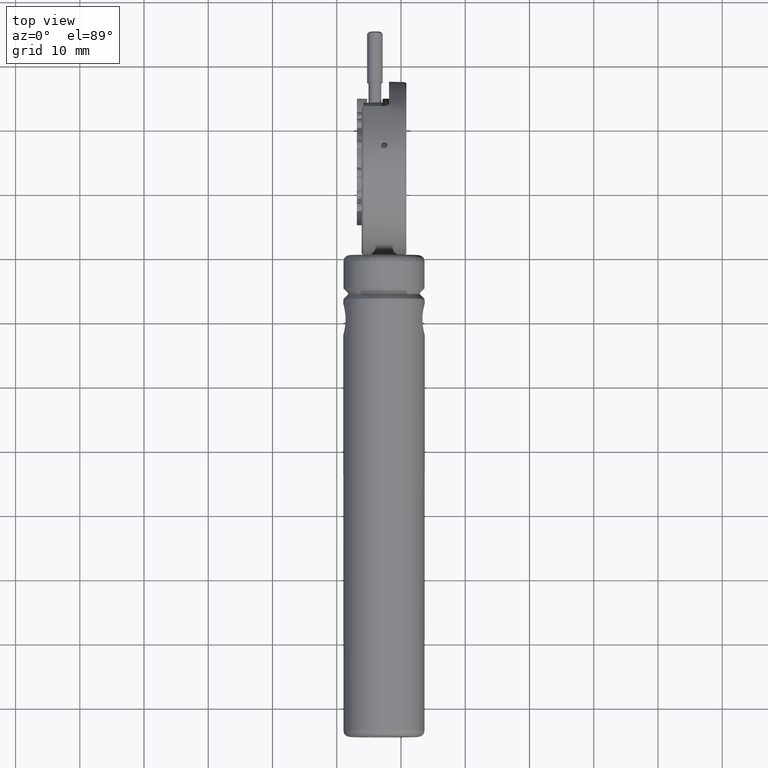
[diagram: clean part render]
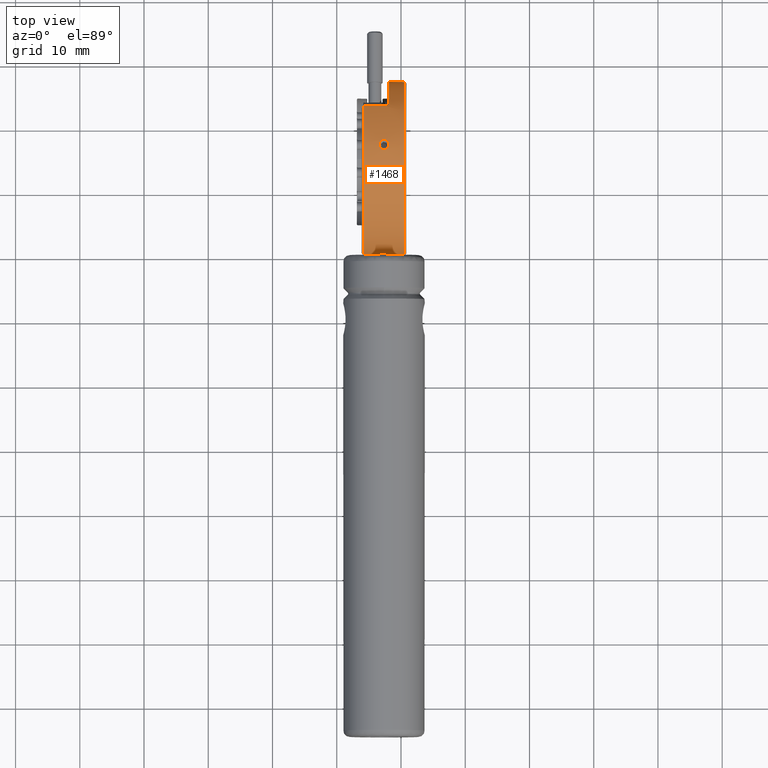
[diagram: same view with one face highlighted and labeled with its STEP entity id]
A machine part, top view. The second image highlights one B-rep face of the part: STEP entity #1468.
In plain terms, the highlighted cylindrical surface (bore or boss wall) has radius 13.5 mm, axis along (1, 0, 0).
Its self-contained STEP definition (entity closure, byte-faithful):
#177 = CIRCLE ( 'NONE', #10053, 13.49999999999999822 ) ;
#341 = CARTESIAN_POINT ( 'NONE',  ( 6.862472765938855801, 8.043231515056518788, -43.01089921876356215 ) ) ;
#346 = CARTESIAN_POINT ( 'NONE',  ( 5.788833483634074462, -9.554500805941120944, -29.61865608093620850 ) ) ;
#362 = CARTESIAN_POINT ( 'NONE',  ( 8.134389209459746084, 13.86479729069080413, -39.29938932386716033 ) ) ;
#402 = CARTESIAN_POINT ( 'NONE',  ( 6.951197932406166125, 8.099828938983165472, -42.99253362283844382 ) ) ;
#423 = CARTESIAN_POINT ( 'NONE',  ( 8.134389209459747860, 13.99690466723522597, -39.15171444627244313 ) ) ;
#453 = CARTESIAN_POINT ( 'NONE',  ( 6.655066416664647377, 7.039272983399781580, -43.28953710316449133 ) ) ;
#515 = CARTESIAN_POINT ( 'NONE',  ( 5.704389209459755250, -9.564624189008771538, -30.36905418360534981 ) ) ;
#547 = EDGE_CURVE ( 'NONE', #9798, #11067, #3924, .T. ) ;
#580 = CARTESIAN_POINT ( 'NONE',  ( 5.704389209459754362, -9.564624189008769761, -30.15084576180818488 ) ) ;
#691 = CARTESIAN_POINT ( 'NONE',  ( 8.786429568592232897, -9.539589650735070592, -30.97751210931916077 ) ) ;
#732 = CARTESIAN_POINT ( 'NONE',  ( 7.144935347753054167, 8.176255880045928848, -42.96749716594912627 ) ) ;
#755 = CARTESIAN_POINT ( 'NONE',  ( 7.570314119665177088, -9.464733438938118582, -28.51147960778699542 ) ) ;
#790 = VERTEX_POINT ( 'NONE', #8972 ) ;
#1038 = CARTESIAN_POINT ( 'NONE',  ( 7.354389209460113541, 6.650551893426499106, -16.92670802653896800 ) ) ;
#1065 = CARTESIAN_POINT ( 'NONE',  ( 8.134389209459747860, 13.99690466723522597, -39.15171444627244313 ) ) ;
#1091 = EDGE_LOOP ( 'NONE', ( #10116, #10543, #9153, #4359, #3761, #10577 ) ) ;
#1175 = CARTESIAN_POINT ( 'NONE',  ( 6.339738600207126318, -9.500920979261239907, -28.83205135825627252 ) ) ;
#1303 = CARTESIAN_POINT ( 'NONE',  ( 7.384389209459747860, 13.48131735700957812, -39.69678730782662512 ) ) ;
#1326 = CARTESIAN_POINT ( 'NONE',  ( 7.563843992874067723, 8.176255630840147504, -17.33419427501473109 ) ) ;
#1397 = CARTESIAN_POINT ( 'NONE',  ( 6.348827804548049514, -9.500795822877472929, -31.46343389921066347 ) ) ;
#1415 = EDGE_LOOP ( 'NONE', ( #7370 ) ) ;
#1451 = CARTESIAN_POINT ( 'NONE',  ( 8.597109243118294941, -9.520705229979482098, -31.24158198657451280 ) ) ;
#1468 = ADVANCED_FACE ( 'NONE', ( #11145, #4661, #8372, #8248, #3885 ), #9370, .T. ) ;
#1527 = ORIENTED_EDGE ( 'NONE', *, *, #3706, .T. ) ;
#1587 = EDGE_LOOP ( 'NONE', ( #1527 ) ) ;
#1606 = CARTESIAN_POINT ( 'NONE',  ( 7.582531633801018245, 13.48131735700960476, -20.60490421578978726 ) ) ;
#1607 = CARTESIAN_POINT ( 'NONE',  ( 8.067644417237932686, 7.024102770417527175, -43.29358441722168749 ) ) ;
#1620 = DIRECTION ( 'NONE',  ( -1.000000000000000000, -1.399727883735551326E-17, -1.375382564234869062E-17 ) ) ;
#1629 = CARTESIAN_POINT ( 'NONE',  ( 8.369038357474796186, -9.500920869643209699, -31.46964122840930500 ) ) ;
#1855 = DIRECTION ( 'NONE',  ( 0.000000000000000000, 6.424901762877064728E-17, -1.000000000000000000 ) ) ;
#2039 = CARTESIAN_POINT ( 'NONE',  ( 8.133773154319454690, 7.227538933832732937, -17.05805958857096272 ) ) ;
#2056 = VECTOR ( 'NONE', #1620, 1000.000000000000000 ) ;
#2061 = CARTESIAN_POINT ( 'NONE',  ( 5.757067925882394022, -9.558270892968069532, -29.72348830418765786 ) ) ;
#2103 = CARTESIAN_POINT ( 'NONE',  ( 8.053712181292851824, 7.039273311014246914, -17.01215449841135552 ) ) ;
#2160 = CARTESIAN_POINT ( 'NONE',  ( 6.575005300685445420, 7.630672176892888459, -17.16607881786689305 ) ) ;
#2172 = CARTESIAN_POINT ( 'NONE',  ( 7.460108622098074349, 6.650552040771541940, -43.37498346682458106 ) ) ;
#2177 = CARTESIAN_POINT ( 'NONE',  ( 6.920544865196354145, -9.468967587344295112, -28.54446932696870931 ) ) ;
#2228 = CARTESIAN_POINT ( 'NONE',  ( 7.846306170221623688, 6.807895549451655981, -43.34190651334564848 ) ) ;
#2236 = B_SPLINE_CURVE_WITH_KNOTS ( 'NONE', 3,
 ( #1303, #8525, #6847, #4042, #2968, #4942, #362, #423 ),
 .UNSPECIFIED., .F., .F.,
 ( 4, 2, 2, 4 ),
 ( 0.000000000000000000, 0.0002929961417332007626, 0.0005859922834664015251, 0.001171984566932804134 ),
 .UNSPECIFIED. ) ;
#2277 = CARTESIAN_POINT ( 'NONE',  ( 7.995092130957172749, 6.953333462210887994, -16.99229247769826401 ) ) ;
#2347 = CARTESIAN_POINT ( 'NONE',  ( 8.961216522838045151, -9.559164214872033938, -29.71799596745508865 ) ) ;
#2394 = EDGE_LOOP ( 'NONE', ( #10131 ) ) ;
#2404 = CARTESIAN_POINT ( 'NONE',  ( 5.871902851419068092, -9.545112678459087618, -30.88325439365420877 ) ) ;
#2474 = EDGE_LOOP ( 'NONE', ( #6123 ) ) ;
#2563 = CARTESIAN_POINT ( 'NONE',  ( 7.354389209460117982, 8.196033215488997214, -42.96087302491338988 ) ) ;
#2583 = CARTESIAN_POINT ( 'NONE',  ( 8.443335022016121627, -9.507370031931214882, -28.90644025326949773 ) ) ;
#2968 = CARTESIAN_POINT ( 'NONE',  ( 7.845474213297227273, 13.58722835534953965, -39.58994144139157356 ) ) ;
#2995 = CARTESIAN_POINT ( 'NONE',  ( 7.771251559114896068, 6.734379471697929276, -16.94334977776139795 ) ) ;
#3007 = DIRECTION ( 'NONE',  ( 0.000000000000000000, -6.424901762877064728E-17, 1.000000000000000000 ) ) ;
#3050 = B_SPLINE_CURVE_WITH_KNOTS ( 'NONE', 3,
 ( #2563, #7045, #732, #402, #341, #5257, #8616, #10391, #6711, #453, #4073, #11233, #3121, #2172, #5873, #5197, #2228, #1607, #3460, #4364, #3338, #7610, #9775, #3069, #7102, #6978 ),
 .UNSPECIFIED., .T., .F.,
 ( 4, 2, 2, 2, 2, 2, 2, 2, 2, 2, 2, 2, 4 ),
 ( 0.000000000000000000, 0.0003126482922094571035, 0.0006252965844189142071, 0.001250593168837834486, 0.001563241461047295980, 0.001875889753256757475, 0.002501186337675675476, 0.002813834629885134803, 0.003126482922094594129, 0.003751779506513505408, 0.004064427798722960831, 0.004377076090932419290, 0.005002372675351331004 ),
 .UNSPECIFIED. ) ;
#3069 = CARTESIAN_POINT ( 'NONE',  ( 7.771251559114893404, 8.115115527556985953, -42.98837463472700193 ) ) ;
#3121 = CARTESIAN_POINT ( 'NONE',  ( 7.142953792946594049, 6.650551598738796422, -43.37498355758262392 ) ) ;
#3226 = CARTESIAN_POINT ( 'NONE',  ( 8.154245683008815249, 7.631567999934081747, -17.16501784367211769 ) ) ;
#3300 = CARTESIAN_POINT ( 'NONE',  ( 8.919943805406209236, -9.554500674453578313, -30.68303872468437277 ) ) ;
#3338 = CARTESIAN_POINT ( 'NONE',  ( 8.133773154319458243, 7.630671999826797780, -43.13561275557002972 ) ) ;
#3422 = CARTESIAN_POINT ( 'NONE',  ( 6.823888837546153496, -9.473537819474650234, -31.71697624980063779 ) ) ;
#3460 = CARTESIAN_POINT ( 'NONE',  ( 8.154245683008804590, 7.227293437165154266, -43.24499872255866961 ) ) ;
#3478 = CARTESIAN_POINT ( 'NONE',  ( 6.926784925553987726, -9.469815340282053739, -31.74812453893319386 ) ) ;
#3655 = CARTESIAN_POINT ( 'NONE',  ( 6.862472765938855801, 6.807895144667571508, -16.95978492202630505 ) ) ;
#3706 = EDGE_CURVE ( 'NONE', #11100, #11100, #3050, .T. ) ;
#3712 = CARTESIAN_POINT ( 'NONE',  ( 6.951197932406161684, 6.749697539795772805, -16.94739128268977524 ) ) ;
#3761 = ORIENTED_EDGE ( 'NONE', *, *, #8813, .T. ) ;
#3836 = VERTEX_POINT ( 'NONE', #11337 ) ;
#3838 = VERTEX_POINT ( 'NONE', #9537 ) ;
#3885 = FACE_BOUND ( 'NONE', #1587, .T. ) ;
#3924 = LINE ( 'NONE', #7565, #11536 ) ;
#4042 = CARTESIAN_POINT ( 'NONE',  ( 7.762290687107354259, 13.54811783327844310, -39.62959075135725584 ) ) ;
#4073 = CARTESIAN_POINT ( 'NONE',  ( 6.713686560338775422, 6.953333092816747829, -43.30939913076996817 ) ) ;
#4099 = AXIS2_PLACEMENT_3D ( 'NONE', #7585, #10017, #1855 ) ;
#4184 = CARTESIAN_POINT ( 'NONE',  ( 7.384389209459747860, 13.48131735700960121, -20.60490421578978371 ) ) ;
#4202 = CARTESIAN_POINT ( 'NONE',  ( 8.597370939519496602, -9.520723787183086984, -29.06027505291162427 ) ) ;
#4260 = CARTESIAN_POINT ( 'NONE',  ( 7.884890438090080167, -9.473537852275965676, -28.58471555097074202 ) ) ;
#4296 = CARTESIAN_POINT ( 'NONE',  ( 8.134389209459747860, 13.93085178113010869, -21.07614053524083531 ) ) ;
#4324 = CARTESIAN_POINT ( 'NONE',  ( 8.181259770130891340, -9.488605317727429878, -28.71894965126415400 ) ) ;
#4359 = ORIENTED_EDGE ( 'NONE', *, *, #8775, .T. ) ;
#4364 = CARTESIAN_POINT ( 'NONE',  ( 8.154460689708539434, 7.529706635593208297, -43.16398054085267688 ) ) ;
#4379 = CARTESIAN_POINT ( 'NONE',  ( 3.874389209459748074, 13.48131735700960121, -20.60490421578978371 ) ) ;
#4385 = CARTESIAN_POINT ( 'NONE',  ( 7.138464663658658615, -9.464733434385854238, -31.79021195213575623 ) ) ;
#4477 = CARTESIAN_POINT ( 'NONE',  ( 4.124389209459759620, 3.935375810991228018, -30.15084576180818843 ) ) ;
#4544 = DIRECTION ( 'NONE',  ( 0.000000000000000000, 6.424901762877064728E-17, -1.000000000000000000 ) ) ;
#4614 = CARTESIAN_POINT ( 'NONE',  ( 7.248670812756217607, 6.650551893426452033, -16.92670802653895379 ) ) ;
#4653 = CARTESIAN_POINT ( 'NONE',  ( 7.384389209459747860, 13.48131735700960121, -20.60490421578978371 ) ) ;
#4661 = FACE_BOUND ( 'NONE', #2474, .T. ) ;
#4764 = EDGE_CURVE ( 'NONE', #3838, #3838, #177, .T. ) ;
#4814 = CARTESIAN_POINT ( 'NONE',  ( 6.111667615060498271, -9.520705373938112004, -29.06011129676277349 ) ) ;
#4942 = CARTESIAN_POINT ( 'NONE',  ( 8.053014151375645469, 13.73155826644864064, -39.44083760490748602 ) ) ;
#4961 = CARTESIAN_POINT ( 'NONE',  ( 7.757581126513665382, 8.099828572114152081, -17.30915778161249818 ) ) ;
#5015 = CARTESIAN_POINT ( 'NONE',  ( 7.460108622098078790, 8.196033072758025284, -17.34081845123019860 ) ) ;
#5094 = CARTESIAN_POINT ( 'NONE',  ( 7.788232834734084342, -9.468967568169272653, -31.75722234278040190 ) ) ;
#5197 = CARTESIAN_POINT ( 'NONE',  ( 7.757581126513660941, 6.749697917096385780, -43.35430016069239656 ) ) ;
#5257 = CARTESIAN_POINT ( 'NONE',  ( 6.641134156665703614, 7.831829473198062885, -43.07715468829457706 ) ) ;
#5280 = CARTESIAN_POINT ( 'NONE',  ( 6.624009286431121524, -9.482932164929449570, -31.63433506681064600 ) ) ;
#5320 = CARTESIAN_POINT ( 'NONE',  ( 4.124389209459757843, 13.48131735700957812, -39.69678730782662512 ) ) ;
#5432 = VERTEX_POINT ( 'NONE', #4653 ) ;
#5706 = DIRECTION ( 'NONE',  ( 1.000000000000000000, 1.399727883735551326E-17, 1.375382564234869062E-17 ) ) ;
#5714 = CARTESIAN_POINT ( 'NONE',  ( 5.922347401930329269, -9.539589804906857040, -29.32418190174698225 ) ) ;
#5749 = CARTESIAN_POINT ( 'NONE',  ( 7.565826002867905409, 6.650551893426591477, -16.92670802653899642 ) ) ;
#5817 = CARTESIAN_POINT ( 'NONE',  ( 7.137784490026099604, -9.463430735736638511, -28.50100239102129507 ) ) ;
#5873 = CARTESIAN_POINT ( 'NONE',  ( 7.563843992874066835, 6.670991896002037791, -43.37083145074738155 ) ) ;
#5897 = VERTEX_POINT ( 'NONE', #1065 ) ;
#5947 = DIRECTION ( 'NONE',  ( 0.000000000000000000, 6.424901762877064728E-17, -1.000000000000000000 ) ) ;
#5985 = CARTESIAN_POINT ( 'NONE',  ( 8.951709547286032631, -9.558270780695144353, -30.57820671060894568 ) ) ;
#6024 = CARTESIAN_POINT ( 'NONE',  ( 7.984166314906762985, 13.68374725045446816, -20.81146430193891561 ) ) ;
#6035 = LINE ( 'NONE', #4379, #2056 ) ;
#6045 = CARTESIAN_POINT ( 'NONE',  ( 5.747562871797084583, -9.559164097027474938, -30.58369902067402535 ) ) ;
#6123 = ORIENTED_EDGE ( 'NONE', *, *, #6417, .T. ) ;
#6164 = CARTESIAN_POINT ( 'NONE',  ( 7.460896913928785956, -9.463401883602802656, -28.50076809786587262 ) ) ;
#6383 = DIRECTION ( 'NONE',  ( 1.000000000000000000, 1.399727883735551326E-17, 1.375382564234869062E-17 ) ) ;
#6417 = EDGE_CURVE ( 'NONE', #10836, #10836, #11662, .T. ) ;
#6457 = CIRCLE ( 'NONE', #8740, 13.49999999999999822 ) ;
#6462 = CARTESIAN_POINT ( 'NONE',  ( 6.554317729146832860, 7.529706725880452645, -17.13771100695216276 ) ) ;
#6547 = CARTESIAN_POINT ( 'NONE',  ( 7.354389209460115318, 6.650551893426499106, -16.92670802653896445 ) ) ;
#6641 = EDGE_CURVE ( 'NONE', #3836, #5432, #10104, .T. ) ;
#6711 = CARTESIAN_POINT ( 'NONE',  ( 6.575005300685447196, 7.227538755578735596, -43.24363198043262457 ) ) ;
#6716 = CARTESIAN_POINT ( 'NONE',  ( 5.715104060465554525, -9.563302712776028613, -29.93448060786656484 ) ) ;
#6787 = DIRECTION ( 'NONE',  ( 1.000000000000000000, 1.399727883735551326E-17, 1.375382564234869062E-17 ) ) ;
#6847 = CARTESIAN_POINT ( 'NONE',  ( 7.580674885609854030, 13.49513136847293460, -39.68302753961466323 ) ) ;
#6941 = CARTESIAN_POINT ( 'NONE',  ( 6.043191495294832016, -9.527283797320281522, -31.15821840237010321 ) ) ;
#6978 = CARTESIAN_POINT ( 'NONE',  ( 7.354389209460117982, 8.196033215488997214, -42.96087302491338988 ) ) ;
#7001 = CARTESIAN_POINT ( 'NONE',  ( 8.837106262788262612, -9.545138135438959281, -30.88278884866181073 ) ) ;
#7045 = CARTESIAN_POINT ( 'NONE',  ( 7.248670812756223825, 8.196033215489039847, -42.96087302491337567 ) ) ;
#7063 = CARTESIAN_POINT ( 'NONE',  ( 8.084770283912408928, -9.482932226510891738, -28.66735700992718705 ) ) ;
#7102 = CARTESIAN_POINT ( 'NONE',  ( 7.565826002867904521, 8.196033215488908397, -42.96087302491341120 ) ) ;
#7354 = CARTESIAN_POINT ( 'NONE',  ( 6.554532736038940044, 7.227293256592107973, -17.05669275268120799 ) ) ;
#7370 = ORIENTED_EDGE ( 'NONE', *, *, #4764, .F. ) ;
#7444 = VERTEX_POINT ( 'NONE', #6547 ) ;
#7565 = CARTESIAN_POINT ( 'NONE',  ( 3.874389209459748518, 13.48131735700957812, -39.69678730782662512 ) ) ;
#7585 = CARTESIAN_POINT ( 'NONE',  ( 3.874389209459748518, 3.935375810991228018, -30.15084576180818843 ) ) ;
#7590 = CARTESIAN_POINT ( 'NONE',  ( 7.354389209460115318, 8.196033215488993662, -42.96087302491338988 ) ) ;
#7610 = CARTESIAN_POINT ( 'NONE',  ( 8.053712181292848271, 7.816667356926704890, -43.08123491840201780 ) ) ;
#7616 = CARTESIAN_POINT ( 'NONE',  ( 5.704389209459754362, -9.564624189008769761, -30.15084576180818488 ) ) ;
#7783 = CARTESIAN_POINT ( 'NONE',  ( 7.247881685339643276, -9.463401883618876909, -31.80092342561996333 ) ) ;
#7844 = CARTESIAN_POINT ( 'NONE',  ( 8.785133076204095559, -9.539452288134736335, -29.32198442828852691 ) ) ;
#7901 = CARTESIAN_POINT ( 'NONE',  ( 8.993673828602860354, -9.563302648111907445, -30.36721484378203684 ) ) ;
#7965 = CARTESIAN_POINT ( 'NONE',  ( 8.359952049371578653, -9.500795929690770691, -28.83825870927254442 ) ) ;
#8023 = CARTESIAN_POINT ( 'NONE',  ( 9.004389789298137714, -9.564624259877914980, -29.93264218967414436 ) ) ;
#8199 = CARTESIAN_POINT ( 'NONE',  ( 7.144935347753054167, 6.670991638857233674, -16.93086001984528366 ) ) ;
#8248 = FACE_BOUND ( 'NONE', #2394, .T. ) ;
#8372 = FACE_OUTER_BOUND ( 'NONE', #1415, .T. ) ;
#8456 = CARTESIAN_POINT ( 'NONE',  ( 6.523624250071842212, -9.487677919185021125, -28.70914685159491597 ) ) ;
#8492 = CARTESIAN_POINT ( 'NONE',  ( 8.067644417237930909, 7.831829126480949199, -17.22453673120720197 ) ) ;
#8525 = CARTESIAN_POINT ( 'NONE',  ( 7.483460689329414883, 13.48131735700958522, -39.69678730782662512 ) ) ;
#8551 = CARTESIAN_POINT ( 'NONE',  ( 6.937527517967446045, 8.115115953416944805, -17.31331702701070085 ) ) ;
#8603 = CARTESIAN_POINT ( 'NONE',  ( 6.655066416664644713, 7.816667679628892529, -17.22045670150671270 ) ) ;
#8616 = CARTESIAN_POINT ( 'NONE',  ( 6.554532736038938268, 7.631568180503193410, -43.13667363155304457 ) ) ;
#8656 = CARTESIAN_POINT ( 'NONE',  ( 6.713686560338773646, 7.901024821874999660, -17.24622562632121969 ) ) ;
#8737 = CARTESIAN_POINT ( 'NONE',  ( 6.527519906698329599, -9.488605240827164167, -31.58274258548247815 ) ) ;
#8740 = AXIS2_PLACEMENT_3D ( 'NONE', #4477, #6383, #4544 ) ;
#8775 = EDGE_CURVE ( 'NONE', #11067, #5897, #2236, .T. ) ;
#8776 = CARTESIAN_POINT ( 'NONE',  ( 8.134389209459747860, 13.99690466723524729, -21.14997707734395505 ) ) ;
#8794 = CARTESIAN_POINT ( 'NONE',  ( 8.666720258063561388, -9.527393866369440190, -31.15678018271336569 ) ) ;
#8813 = EDGE_CURVE ( 'NONE', #5897, #3836, #11751, .T. ) ;
#8832 = CARTESIAN_POINT ( 'NONE',  ( 7.776773348659285823, 13.53931619389006791, -20.66224753970528027 ) ) ;
#8888 = CARTESIAN_POINT ( 'NONE',  ( 8.114948068621568922, 13.86519548537401114, -21.00442945782663529 ) ) ;
#8912 = CARTESIAN_POINT ( 'NONE',  ( 7.781994192311969094, -9.469815361258230979, -28.55356715979867843 ) ) ;
#8972 = CARTESIAN_POINT ( 'NONE',  ( 4.124389209459758732, 13.48131735700960121, -20.60490421578978371 ) ) ;
#9153 = ORIENTED_EDGE ( 'NONE', *, *, #547, .T. ) ;
#9342 = CARTESIAN_POINT ( 'NONE',  ( 6.042056602545443411, -9.527394018516144314, -29.14491335609052669 ) ) ;
#9370 = CYLINDRICAL_SURFACE ( 'NONE', #4099, 13.49999999999999822 ) ;
#9466 = EDGE_CURVE ( 'NONE', #5432, #790, #6035, .T. ) ;
#9487 = CARTESIAN_POINT ( 'NONE',  ( 7.142953792946595826, 8.196033500948630035, -17.34081859364780343 ) ) ;
#9537 = CARTESIAN_POINT ( 'NONE',  ( 10.58438920945974715, 3.935375810991227130, -16.65084576180819198 ) ) ;
#9550 = CARTESIAN_POINT ( 'NONE',  ( 10.58438920945974715, 3.935375810991228018, -30.15084576180818843 ) ) ;
#9611 = CARTESIAN_POINT ( 'NONE',  ( 8.185152893970954580, -9.487677844371821934, -31.59254535311857026 ) ) ;
#9645 = EDGE_CURVE ( 'NONE', #7444, #7444, #11208, .T. ) ;
#9737 = CARTESIAN_POINT ( 'NONE',  ( 7.570993568206412228, -9.463430735704490004, -31.80068913285617072 ) ) ;
#9775 = CARTESIAN_POINT ( 'NONE',  ( 7.995092130957169196, 7.901024459544355061, -43.05546600850836114 ) ) ;
#9793 = CARTESIAN_POINT ( 'NONE',  ( 6.265444934567349300, -9.507369907422868138, -31.39525260208654700 ) ) ;
#9798 = VERTEX_POINT ( 'NONE', #5320 ) ;
#9851 = AXIS2_PLACEMENT_3D ( 'NONE', #11253, #6787, #5947 ) ;
#10017 = DIRECTION ( 'NONE',  ( 1.000000000000000000, 1.399727883735551326E-17, 1.375382564234869062E-17 ) ) ;
#10027 = CARTESIAN_POINT ( 'NONE',  ( 6.641134156665703614, 7.024102418094400946, -17.00810702320201884 ) ) ;
#10053 = AXIS2_PLACEMENT_3D ( 'NONE', #9550, #5706, #3007 ) ;
#10104 = B_SPLINE_CURVE_WITH_KNOTS ( 'NONE', 3,
 ( #8776, #4296, #8888, #11567, #6024, #8832, #1606, #4184 ),
 .UNSPECIFIED., .F., .F.,
 ( 4, 2, 2, 4 ),
 ( 0.000000000000000000, 0.0002929972604935865811, 0.0005859945209871731623, 0.001171989041974351529 ),
 .UNSPECIFIED. ) ;
#10116 = ORIENTED_EDGE ( 'NONE', *, *, #9466, .T. ) ;
#10131 = ORIENTED_EDGE ( 'NONE', *, *, #9645, .T. ) ;
#10229 = CARTESIAN_POINT ( 'NONE',  ( 5.704389209459753474, -9.564624189008769761, -30.04174155090959530 ) ) ;
#10343 = CARTESIAN_POINT ( 'NONE',  ( 5.871670789281648872, -9.545138286139049910, -29.41890541344861987 ) ) ;
#10377 = CARTESIAN_POINT ( 'NONE',  ( 7.354389209460113541, 6.650551893426499106, -16.92670802653896800 ) ) ;
#10391 = CARTESIAN_POINT ( 'NONE',  ( 6.554317729146833749, 7.329161306517420371, -43.21771649982830610 ) ) ;
#10543 = ORIENTED_EDGE ( 'NONE', *, *, #10800, .T. ) ;
#10568 = CARTESIAN_POINT ( 'NONE',  ( 6.111409036850449006, -9.520723643368469880, -31.24141823003425955 ) ) ;
#10577 = ORIENTED_EDGE ( 'NONE', *, *, #6641, .T. ) ;
#10690 = CARTESIAN_POINT ( 'NONE',  ( 8.665588467660660044, -9.527283947892779992, -29.14347511119148493 ) ) ;
#10800 = EDGE_CURVE ( 'NONE', #790, #9798, #6457, .T. ) ;
#10836 = VERTEX_POINT ( 'NONE', #11610 ) ;
#11067 = VERTEX_POINT ( 'NONE', #11068 ) ;
#11068 = CARTESIAN_POINT ( 'NONE',  ( 7.384389209459747860, 13.48131735700957812, -39.69678730782662512 ) ) ;
#11100 = VERTEX_POINT ( 'NONE', #7590 ) ;
#11145 = FACE_OUTER_BOUND ( 'NONE', #1091, .T. ) ;
#11160 = CARTESIAN_POINT ( 'NONE',  ( 7.846306170221619247, 8.043231120381010513, -17.29079217888268616 ) ) ;
#11190 = DIRECTION ( 'NONE',  ( 1.000000000000000000, 1.399727883735551326E-17, 1.375382564234869062E-17 ) ) ;
#11208 = B_SPLINE_CURVE_WITH_KNOTS ( 'NONE', 3,
 ( #1038, #4614, #8199, #3712, #3655, #10027, #7354, #6462, #2160, #8603, #8656, #8551, #9487, #5015, #1326, #4961, #11160, #8492, #3226, #11326, #2039, #2103, #2277, #2995, #5749, #10377 ),
 .UNSPECIFIED., .T., .F.,
 ( 4, 2, 2, 2, 2, 2, 2, 2, 2, 2, 2, 2, 4 ),
 ( 0.000000000000000000, 0.0003126482922094572662, 0.0006252965844189145323, 0.001250593168837832317, 0.001563241461047292511, 0.001875889753256752921, 0.002501186337675669405, 0.002813834629885128731, 0.003126482922094588057, 0.003751779506513505408, 0.004064427798722962566, 0.004377076090932420158, 0.005002372675351336208 ),
 .UNSPECIFIED. ) ;
#11233 = CARTESIAN_POINT ( 'NONE',  ( 6.937527517967441604, 6.734379033831729977, -43.35834183916835372 ) ) ;
#11253 = CARTESIAN_POINT ( 'NONE',  ( 8.134389209459747860, 3.935375810991228018, -30.15084576180818843 ) ) ;
#11326 = CARTESIAN_POINT ( 'NONE',  ( 8.154460689708535881, 7.329161396802698292, -17.08397504798387700 ) ) ;
#11337 = CARTESIAN_POINT ( 'NONE',  ( 8.134389209459747860, 13.99690466723524729, -21.14997707734395505 ) ) ;
#11412 = CARTESIAN_POINT ( 'NONE',  ( 5.923646801260558981, -9.539452133077316986, -30.97970958896219074 ) ) ;
#11468 = CARTESIAN_POINT ( 'NONE',  ( 9.004388919531816526, -9.564624153573136667, -30.25995412469515600 ) ) ;
#11536 = VECTOR ( 'NONE', #11190, 1000.000000000000000 ) ;
#11567 = CARTESIAN_POINT ( 'NONE',  ( 8.039804117104608849, 13.74122609210047941, -20.87164589134691539 ) ) ;
#11591 = CARTESIAN_POINT ( 'NONE',  ( 8.836876953453831618, -9.545112831292646760, -29.41843991203647946 ) ) ;
#11610 = CARTESIAN_POINT ( 'NONE',  ( 5.704389209459755250, -9.564624189008771538, -30.15084576180818843 ) ) ;
#11662 = B_SPLINE_CURVE_WITH_KNOTS ( 'NONE', 3,
 ( #7616, #10229, #6716, #2061, #346, #10343, #5714, #9342, #4814, #1175, #8456, #2177, #5817, #6164, #755, #8912, #4260, #7063, #4324, #7965, #2583, #4202, #10690, #7844, #11591, #2347, #8023, #11468, #7901, #5985, #3300, #7001, #691, #8794, #1451, #1629, #9611, #5094, #9737, #7783, #4385, #3478, #3422, #5280, #8737, #1397, #9793, #10568, #6941, #11412, #2404, #6045, #515, #580 ),
 .UNSPECIFIED., .T., .F.,
 ( 4, 2, 2, 2, 2, 2, 2, 2, 2, 2, 2, 2, 2, 2, 2, 2, 2, 2, 2, 2, 2, 2, 2, 2, 2, 2, 4 ),
 ( 0.000000000000000000, 0.0003226436840272199104, 0.0006452873680544398208, 0.0009679310520816596227, 0.001290574736108879642, 0.001935862104163319679, 0.002581149472217759717, 0.002903793156244980061, 0.003226436840272199538, 0.003549080524299419448, 0.003871724208326639358, 0.004194367892353859269, 0.004517011576381078745, 0.005162298944435519434, 0.005484942628462738910, 0.005807586312489960122, 0.006130229996517179598, 0.006452873680544399075, 0.007098161048598834559, 0.007743448416653269176, 0.008066092100680483448, 0.008388735784707699455, 0.008711379468734915463, 0.009034023152762129735, 0.009356666836789338804, 0.009679310520816546137, 0.01032459788887095387 ),
 .UNSPECIFIED. ) ;
#11751 = CIRCLE ( 'NONE', #9851, 13.49999999999999822 ) ;